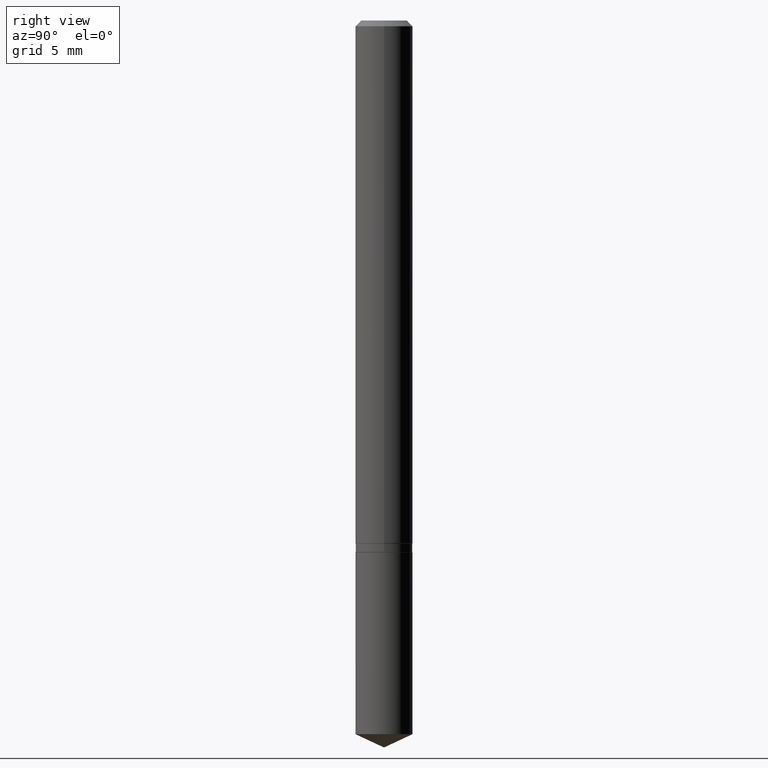
[diagram: clean part render]
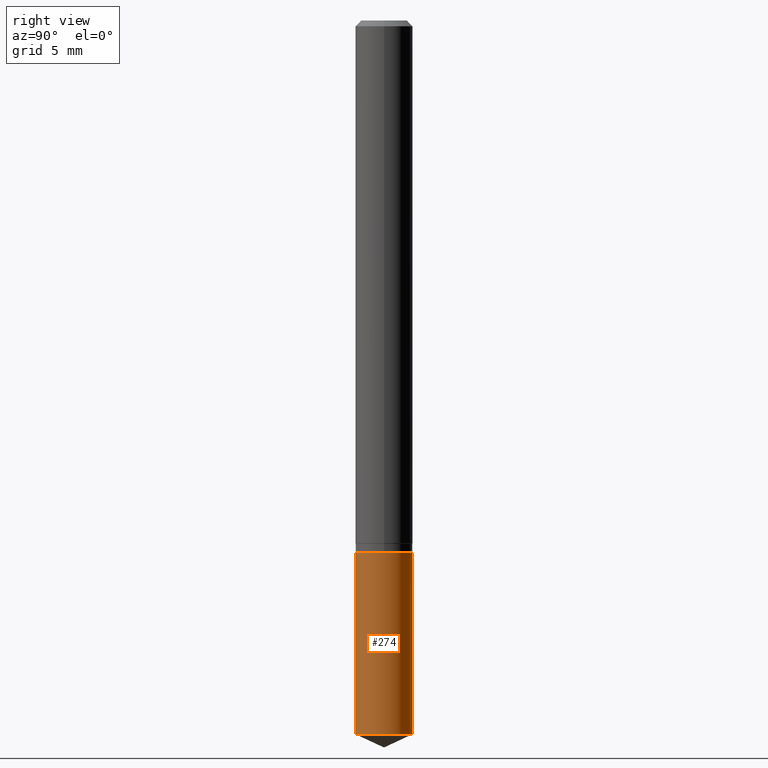
[diagram: same view with one face highlighted and labeled with its STEP entity id]
A machine part, right view. The second image highlights one B-rep face of the part: STEP entity #274.
In plain terms, the highlighted cylindrical surface (edge-blend (fillet) strip) has radius 1.4897 mm, axis along (-0, 0, 1).
Its self-contained STEP definition (entity closure, byte-faithful):
#24 = CARTESIAN_POINT ( 'NONE',  ( -4.095507610462727564E-16, -0.05865000000000382407, -1.094499999999999806 ) ) ;
#25 = DIRECTION ( 'NONE',  ( -6.982962677686266711E-15, -1.000000000000000000, 4.657882342138556398E-15 ) ) ;
#30 = AXIS2_PLACEMENT_3D ( 'NONE', #374, #157, #118 ) ;
#65 = CIRCLE ( 'NONE', #301, 0.05865000000000000074 ) ;
#83 = CARTESIAN_POINT ( 'NONE',  ( 4.167333145233346575E-16, 0.05864999999999617741, -1.094500000000000028 ) ) ;
#111 = ORIENTED_EDGE ( 'NONE', *, *, #334, .F. ) ;
#115 = AXIS2_PLACEMENT_3D ( 'NONE', #444, #232, #331 ) ;
#118 = DIRECTION ( 'NONE',  ( -6.982962677686266711E-15, -1.000000000000000000, 2.328941171069278199E-15 ) ) ;
#133 = FACE_OUTER_BOUND ( 'NONE', #470, .T. ) ;
#137 = VERTEX_POINT ( 'NONE', #471 ) ;
#143 = EDGE_CURVE ( 'NONE', #231, #248, #369, .T. ) ;
#148 = DIRECTION ( 'NONE',  ( -2.445458899330790108E-29, 3.491495526022433599E-15, 1.000000000000000000 ) ) ;
#149 = EDGE_CURVE ( 'NONE', #373, #248, #306, .T. ) ;
#157 = DIRECTION ( 'NONE',  ( -2.445458899330790108E-29, 3.491495526022433205E-15, 1.000000000000000000 ) ) ;
#173 = EDGE_CURVE ( 'NONE', #137, #373, #65, .T. ) ;
#200 = CYLINDRICAL_SURFACE ( 'NONE', #115, 0.05865000000000000074 ) ;
#204 = ORIENTED_EDGE ( 'NONE', *, *, #173, .T. ) ;
#221 = CARTESIAN_POINT ( 'NONE',  ( 4.167333145233254377E-16, 0.05864999999999617741, -1.094500000000000028 ) ) ;
#231 = VERTEX_POINT ( 'NONE', #317 ) ;
#232 = DIRECTION ( 'NONE',  ( -2.445458899330790108E-29, 3.491495526022433205E-15, 1.000000000000000000 ) ) ;
#248 = VERTEX_POINT ( 'NONE', #83 ) ;
#260 = VECTOR ( 'NONE', #148, 39.37007874015748143 ) ;
#274 = ADVANCED_FACE ( 'NONE', ( #133 ), #200, .T. ) ;
#301 = AXIS2_PLACEMENT_3D ( 'NONE', #305, #463, #25 ) ;
#305 = CARTESIAN_POINT ( 'NONE',  ( 3.591781183480025262E-29, -5.128122212470508622E-15, -1.468751055849209397 ) ) ;
#306 = LINE ( 'NONE', #221, #260 ) ;
#311 = ORIENTED_EDGE ( 'NONE', *, *, #149, .T. ) ;
#317 = CARTESIAN_POINT ( 'NONE',  ( -4.095507610462727564E-16, -0.05865000000000382407, -1.094499999999999806 ) ) ;
#323 = DIRECTION ( 'NONE',  ( -2.445458899330790108E-29, 3.491495526022433599E-15, 1.000000000000000000 ) ) ;
#331 = DIRECTION ( 'NONE',  ( -6.982962677686266711E-15, -1.000000000000000000, 2.328941171069278199E-15 ) ) ;
#334 = EDGE_CURVE ( 'NONE', #137, #231, #358, .T. ) ;
#343 = ORIENTED_EDGE ( 'NONE', *, *, #143, .F. ) ;
#355 = CARTESIAN_POINT ( 'NONE',  ( 4.167333145233346575E-16, 0.05864999999999487984, -1.468751055849209841 ) ) ;
#358 = LINE ( 'NONE', #24, #397 ) ;
#369 = CIRCLE ( 'NONE', #30, 0.05865000000000000074 ) ;
#373 = VERTEX_POINT ( 'NONE', #355 ) ;
#374 = CARTESIAN_POINT ( 'NONE',  ( 2.676565608369631794E-29, -3.821426325363822773E-15, -1.094499999999999806 ) ) ;
#397 = VECTOR ( 'NONE', #323, 39.37007874015748143 ) ;
#444 = CARTESIAN_POINT ( 'NONE',  ( 2.676565608369631794E-29, -3.821426325363822773E-15, -1.094499999999999806 ) ) ;
#463 = DIRECTION ( 'NONE',  ( -2.445458899330790108E-29, 3.491495526022433205E-15, 1.000000000000000000 ) ) ;
#470 = EDGE_LOOP ( 'NONE', ( #204, #311, #343, #111 ) ) ;
#471 = CARTESIAN_POINT ( 'NONE',  ( -4.095507610462636845E-16, -0.05865000000000514246, -1.468751055849209175 ) ) ;